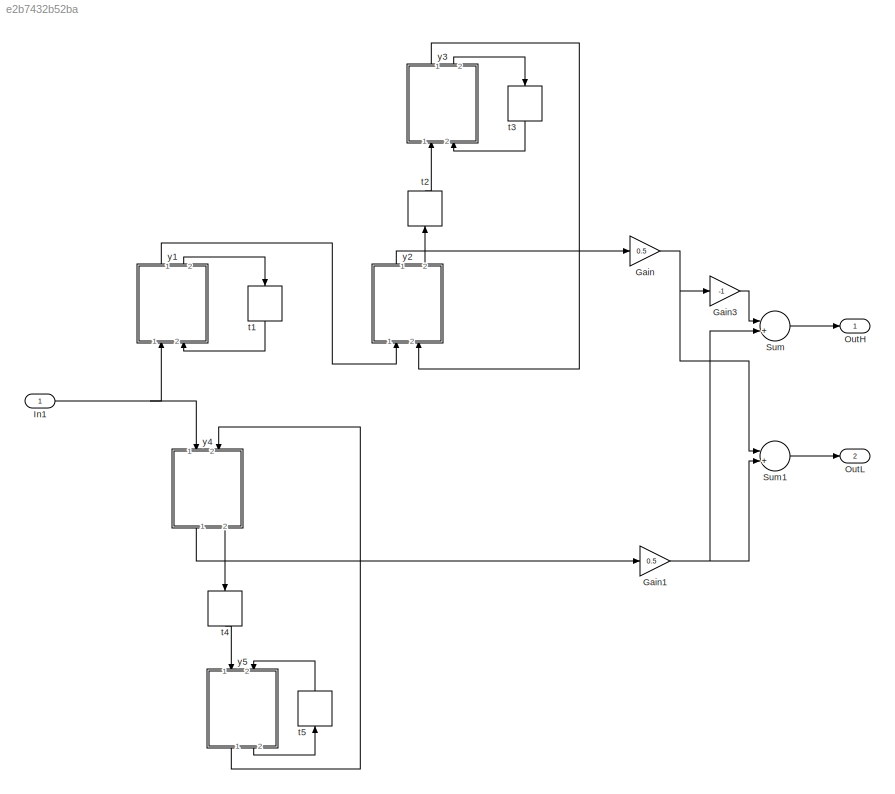
MODEL slx_e2b7432b52ba
KIND model
BLOCK [Gain] Gain
  Gain = 0.5
  OutDataTypeStr = Inherit: Inherit via internal rule
  ParamDataTypeStr = Inherit: Inherit via internal rule
  SaturateOnIntegerOverflow = off
BLOCK [Gain] Gain1
  Gain = 0.5
  OutDataTypeStr = Inherit: Inherit via internal rule
  ParamDataTypeStr = Inherit: Inherit via internal rule
  SaturateOnIntegerOverflow = off
BLOCK [Gain] Gain3
  Gain = -1
  OutDataTypeStr = Inherit: Inherit via internal rule
  ParamDataTypeStr = Inherit: Inherit via internal rule
  SaturateOnIntegerOverflow = off
BLOCK [Inport] In1
  IconDisplay = Port number
BLOCK [Outport] OutH
  IconDisplay = Port number
BLOCK [Outport] OutL
  IconDisplay = Port number
  Port = 2
BLOCK [Sum] Sum
  IconShape = round
  InputSameDT = off
  Inputs = |+|+|
  OutDataTypeStr = Inherit: Inherit via internal rule
  Ports = [2, 1]
  SaturateOnIntegerOverflow = off
BLOCK [Sum] Sum1
  IconShape = round
  InputSameDT = off
  Inputs = |+|+|
  OutDataTypeStr = Inherit: Inherit via internal rule
  Ports = [2, 1]
  SaturateOnIntegerOverflow = off
BLOCK [Delay] t1
  DelayLength = 1
  InitialCondition = 0
  InputPortMap = u0
  Ports = [1, 1]
BLOCK [Delay] t2
  DelayLength = 1
  InitialCondition = 0
  InputPortMap = u0
  Ports = [1, 1]
BLOCK [Delay] t3
  DelayLength = 1
  InitialCondition = 0
  InputPortMap = u0
  Ports = [1, 1]
BLOCK [Delay] t4
  DelayLength = 1
  InitialCondition = 0
  InputPortMap = u0
  Ports = [1, 1]
BLOCK [Delay] t5
  DelayLength = 1
  InitialCondition = 0
  InputPortMap = u0
  Ports = [1, 1]
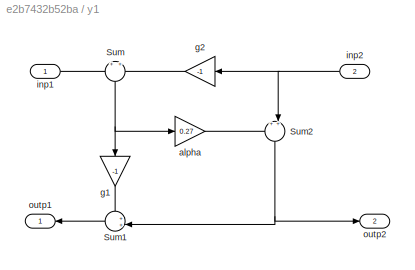
BLOCK [SubSystem] y1
  Ports = [2, 2]
  RequestExecContextInheritance = off
BLOCK [Sum] y1/Sum
  IconShape = round
  InputSameDT = off
  Inputs = +|+
  OutDataTypeStr = Inherit: Inherit via internal rule
  Ports = [2, 1]
  SaturateOnIntegerOverflow = off
BLOCK [Sum] y1/Sum1
  IconShape = round
  InputSameDT = off
  Inputs = ++|
  OutDataTypeStr = Inherit: Inherit via internal rule
  Ports = [2, 1]
  SaturateOnIntegerOverflow = off
BLOCK [Sum] y1/Sum2
  IconShape = round
  InputSameDT = off
  Inputs = ++|
  OutDataTypeStr = Inherit: Inherit via internal rule
  Ports = [2, 1]
  SaturateOnIntegerOverflow = off
BLOCK [Gain] y1/alpha
  Gain = 0.27
  OutDataTypeStr = Inherit: Inherit via internal rule
  ParamDataTypeStr = Inherit: Inherit via internal rule
  SaturateOnIntegerOverflow = off
BLOCK [Gain] y1/g1
  Gain = -1
  OutDataTypeStr = Inherit: Inherit via internal rule
  ParamDataTypeStr = Inherit: Inherit via internal rule
  SaturateOnIntegerOverflow = off
BLOCK [Gain] y1/g2
  Gain = -1
  OutDataTypeStr = Inherit: Inherit via internal rule
  ParamDataTypeStr = Inherit: Inherit via internal rule
  SaturateOnIntegerOverflow = off
BLOCK [Inport] y1/inp1
  IconDisplay = Port number
BLOCK [Inport] y1/inp2
  IconDisplay = Port number
  Port = 2
BLOCK [Outport] y1/outp1
  IconDisplay = Port number
BLOCK [Outport] y1/outp2
  IconDisplay = Port number
  Port = 2
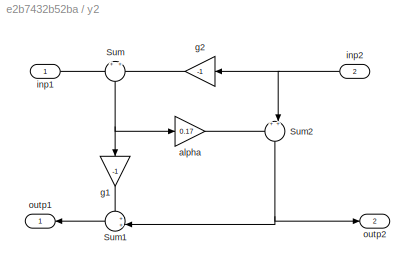
BLOCK [SubSystem] y2
  Ports = [2, 2]
  RequestExecContextInheritance = off
BLOCK [Sum] y2/Sum
  IconShape = round
  InputSameDT = off
  Inputs = +|+
  OutDataTypeStr = Inherit: Inherit via internal rule
  Ports = [2, 1]
  SaturateOnIntegerOverflow = off
BLOCK [Sum] y2/Sum1
  IconShape = round
  InputSameDT = off
  Inputs = ++|
  OutDataTypeStr = Inherit: Inherit via internal rule
  Ports = [2, 1]
  SaturateOnIntegerOverflow = off
BLOCK [Sum] y2/Sum2
  IconShape = round
  InputSameDT = off
  Inputs = ++|
  OutDataTypeStr = Inherit: Inherit via internal rule
  Ports = [2, 1]
  SaturateOnIntegerOverflow = off
BLOCK [Gain] y2/alpha
  Gain = 0.17
  OutDataTypeStr = Inherit: Inherit via internal rule
  ParamDataTypeStr = Inherit: Inherit via internal rule
  SaturateOnIntegerOverflow = off
BLOCK [Gain] y2/g1
  Gain = -1
  OutDataTypeStr = Inherit: Inherit via internal rule
  ParamDataTypeStr = Inherit: Inherit via internal rule
  SaturateOnIntegerOverflow = off
BLOCK [Gain] y2/g2
  Gain = -1
  OutDataTypeStr = Inherit: Inherit via internal rule
  ParamDataTypeStr = Inherit: Inherit via internal rule
  SaturateOnIntegerOverflow = off
BLOCK [Inport] y2/inp1
  IconDisplay = Port number
BLOCK [Inport] y2/inp2
  IconDisplay = Port number
  Port = 2
BLOCK [Outport] y2/outp1
  IconDisplay = Port number
BLOCK [Outport] y2/outp2
  IconDisplay = Port number
  Port = 2
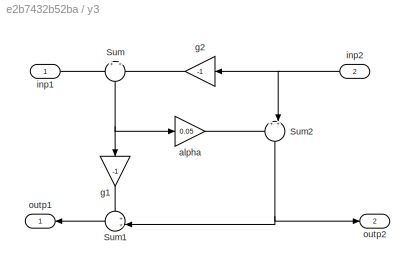
BLOCK [SubSystem] y3
  Ports = [2, 2]
  RequestExecContextInheritance = off
BLOCK [Sum] y3/Sum
  IconShape = round
  InputSameDT = off
  Inputs = +|+
  OutDataTypeStr = Inherit: Inherit via internal rule
  Ports = [2, 1]
  SaturateOnIntegerOverflow = off
BLOCK [Sum] y3/Sum1
  IconShape = round
  InputSameDT = off
  Inputs = ++|
  OutDataTypeStr = Inherit: Inherit via internal rule
  Ports = [2, 1]
  SaturateOnIntegerOverflow = off
BLOCK [Sum] y3/Sum2
  IconShape = round
  InputSameDT = off
  Inputs = ++|
  OutDataTypeStr = Inherit: Inherit via internal rule
  Ports = [2, 1]
  SaturateOnIntegerOverflow = off
BLOCK [Gain] y3/alpha
  Gain = 0.05
  OutDataTypeStr = Inherit: Inherit via internal rule
  ParamDataTypeStr = Inherit: Inherit via internal rule
  SaturateOnIntegerOverflow = off
BLOCK [Gain] y3/g1
  Gain = -1
  OutDataTypeStr = Inherit: Inherit via internal rule
  ParamDataTypeStr = Inherit: Inherit via internal rule
  SaturateOnIntegerOverflow = off
BLOCK [Gain] y3/g2
  Gain = -1
  OutDataTypeStr = Inherit: Inherit via internal rule
  ParamDataTypeStr = Inherit: Inherit via internal rule
  SaturateOnIntegerOverflow = off
BLOCK [Inport] y3/inp1
  IconDisplay = Port number
BLOCK [Inport] y3/inp2
  IconDisplay = Port number
  Port = 2
BLOCK [Outport] y3/outp1
  IconDisplay = Port number
BLOCK [Outport] y3/outp2
  IconDisplay = Port number
  Port = 2
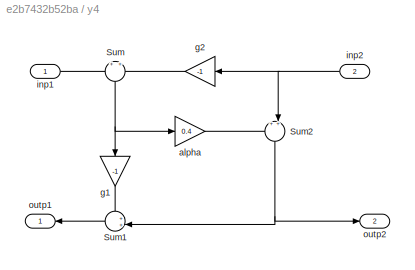
BLOCK [SubSystem] y4
  Ports = [2, 2]
  RequestExecContextInheritance = off
BLOCK [Sum] y4/Sum
  IconShape = round
  InputSameDT = off
  Inputs = +|+
  OutDataTypeStr = Inherit: Inherit via internal rule
  Ports = [2, 1]
  SaturateOnIntegerOverflow = off
BLOCK [Sum] y4/Sum1
  IconShape = round
  InputSameDT = off
  Inputs = ++|
  OutDataTypeStr = Inherit: Inherit via internal rule
  Ports = [2, 1]
  SaturateOnIntegerOverflow = off
BLOCK [Sum] y4/Sum2
  IconShape = round
  InputSameDT = off
  Inputs = ++|
  OutDataTypeStr = Inherit: Inherit via internal rule
  Ports = [2, 1]
  SaturateOnIntegerOverflow = off
BLOCK [Gain] y4/alpha
  Gain = 0.4
  OutDataTypeStr = Inherit: Inherit via internal rule
  ParamDataTypeStr = Inherit: Inherit via internal rule
  SaturateOnIntegerOverflow = off
BLOCK [Gain] y4/g1
  Gain = -1
  OutDataTypeStr = Inherit: Inherit via internal rule
  ParamDataTypeStr = Inherit: Inherit via internal rule
  SaturateOnIntegerOverflow = off
BLOCK [Gain] y4/g2
  Gain = -1
  OutDataTypeStr = Inherit: Inherit via internal rule
  ParamDataTypeStr = Inherit: Inherit via internal rule
  SaturateOnIntegerOverflow = off
BLOCK [Inport] y4/inp1
  IconDisplay = Port number
BLOCK [Inport] y4/inp2
  IconDisplay = Port number
  Port = 2
BLOCK [Outport] y4/outp1
  IconDisplay = Port number
BLOCK [Outport] y4/outp2
  IconDisplay = Port number
  Port = 2
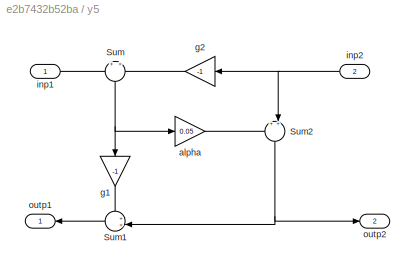
BLOCK [SubSystem] y5
  Ports = [2, 2]
  RequestExecContextInheritance = off
BLOCK [Sum] y5/Sum
  IconShape = round
  InputSameDT = off
  Inputs = +|+
  OutDataTypeStr = Inherit: Inherit via internal rule
  Ports = [2, 1]
  SaturateOnIntegerOverflow = off
BLOCK [Sum] y5/Sum1
  IconShape = round
  InputSameDT = off
  Inputs = ++|
  OutDataTypeStr = Inherit: Inherit via internal rule
  Ports = [2, 1]
  SaturateOnIntegerOverflow = off
BLOCK [Sum] y5/Sum2
  IconShape = round
  InputSameDT = off
  Inputs = ++|
  OutDataTypeStr = Inherit: Inherit via internal rule
  Ports = [2, 1]
  SaturateOnIntegerOverflow = off
BLOCK [Gain] y5/alpha
  Gain = 0.05
  OutDataTypeStr = Inherit: Inherit via internal rule
  ParamDataTypeStr = Inherit: Inherit via internal rule
  SaturateOnIntegerOverflow = off
BLOCK [Gain] y5/g1
  Gain = -1
  OutDataTypeStr = Inherit: Inherit via internal rule
  ParamDataTypeStr = Inherit: Inherit via internal rule
  SaturateOnIntegerOverflow = off
BLOCK [Gain] y5/g2
  Gain = -1
  OutDataTypeStr = Inherit: Inherit via internal rule
  ParamDataTypeStr = Inherit: Inherit via internal rule
  SaturateOnIntegerOverflow = off
BLOCK [Inport] y5/inp1
  IconDisplay = Port number
BLOCK [Inport] y5/inp2
  IconDisplay = Port number
  Port = 2
BLOCK [Outport] y5/outp1
  IconDisplay = Port number
BLOCK [Outport] y5/outp2
  IconDisplay = Port number
  Port = 2
NET Gain1:1 -> Sum1:2, Sum:2
LINE Gain3:1 -> Sum:1
NET Gain:1 -> Gain3:1, Sum1:1
NET In1:1 -> y1:1, y4:1
LINE Sum1:1 -> OutL:1
LINE Sum:1 -> OutH:1
LINE t1:1 -> y1:2
LINE t2:1 -> y3:1
LINE t3:1 -> y3:2
LINE t4:1 -> y5:1
LINE t5:1 -> y5:2
LINE y1/Sum1:1 -> y1/outp1:1
NET y1/Sum2:1 -> y1/Sum1:2, y1/outp2:1
NET y1/Sum:1 -> y1/alpha:1, y1/g1:1
LINE y1/alpha:1 -> y1/Sum2:1
LINE y1/g1:1 -> y1/Sum1:1
LINE y1/g2:1 -> y1/Sum:2
LINE y1/inp1:1 -> y1/Sum:1
NET y1/inp2:1 -> y1/Sum2:2, y1/g2:1
LINE y1:1 -> y2:1
LINE y1:2 -> t1:1
LINE y2/Sum1:1 -> y2/outp1:1
NET y2/Sum2:1 -> y2/Sum1:2, y2/outp2:1
NET y2/Sum:1 -> y2/alpha:1, y2/g1:1
LINE y2/alpha:1 -> y2/Sum2:1
LINE y2/g1:1 -> y2/Sum1:1
LINE y2/g2:1 -> y2/Sum:2
LINE y2/inp1:1 -> y2/Sum:1
NET y2/inp2:1 -> y2/Sum2:2, y2/g2:1
LINE y2:1 -> Gain:1
LINE y2:2 -> t2:1
LINE y3/Sum1:1 -> y3/outp1:1
NET y3/Sum2:1 -> y3/Sum1:2, y3/outp2:1
NET y3/Sum:1 -> y3/alpha:1, y3/g1:1
LINE y3/alpha:1 -> y3/Sum2:1
LINE y3/g1:1 -> y3/Sum1:1
LINE y3/g2:1 -> y3/Sum:2
LINE y3/inp1:1 -> y3/Sum:1
NET y3/inp2:1 -> y3/Sum2:2, y3/g2:1
LINE y3:1 -> y2:2
LINE y3:2 -> t3:1
LINE y4/Sum1:1 -> y4/outp1:1
NET y4/Sum2:1 -> y4/Sum1:2, y4/outp2:1
NET y4/Sum:1 -> y4/alpha:1, y4/g1:1
LINE y4/alpha:1 -> y4/Sum2:1
LINE y4/g1:1 -> y4/Sum1:1
LINE y4/g2:1 -> y4/Sum:2
LINE y4/inp1:1 -> y4/Sum:1
NET y4/inp2:1 -> y4/Sum2:2, y4/g2:1
LINE y4:1 -> Gain1:1
LINE y4:2 -> t4:1
LINE y5/Sum1:1 -> y5/outp1:1
NET y5/Sum2:1 -> y5/Sum1:2, y5/outp2:1
NET y5/Sum:1 -> y5/alpha:1, y5/g1:1
LINE y5/alpha:1 -> y5/Sum2:1
LINE y5/g1:1 -> y5/Sum1:1
LINE y5/g2:1 -> y5/Sum:2
LINE y5/inp1:1 -> y5/Sum:1
NET y5/inp2:1 -> y5/Sum2:2, y5/g2:1
LINE y5:1 -> y4:2
LINE y5:2 -> t5:1
note: NET lines group one-source signal fan-out (src -> all destinations, sorted); 1:1 wires keep LINE
